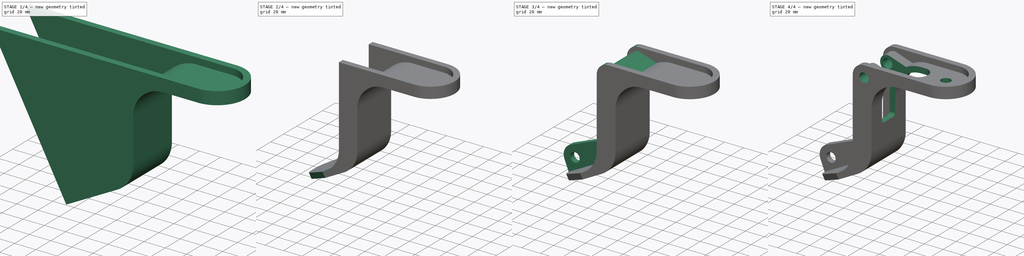
[diagram: build sequence overview — one tinted view per stage of 4, left to right]
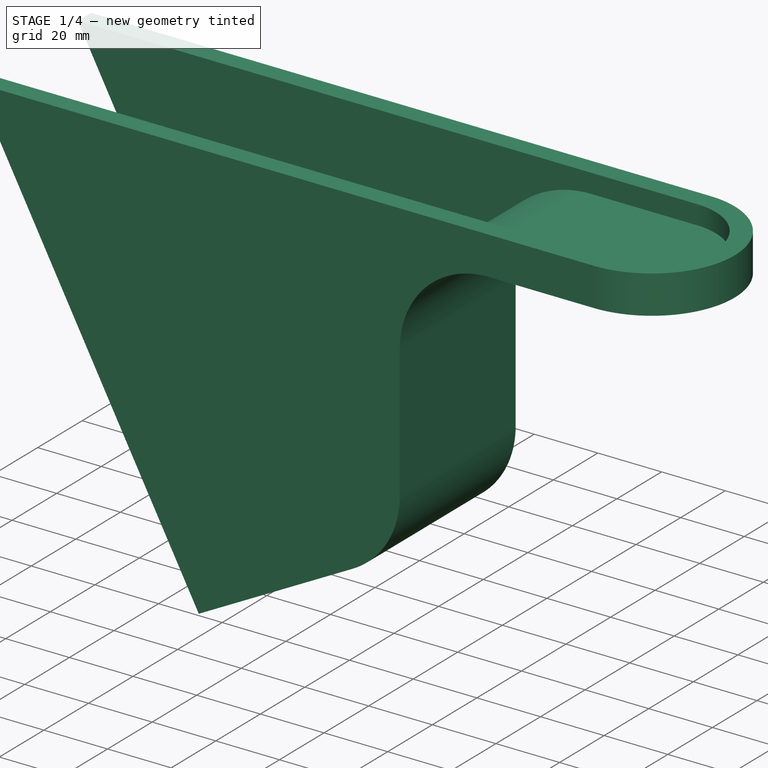
[diagram: stage 1 of 4 — iso view after this stage's code; geometry added in this stage tinted green]
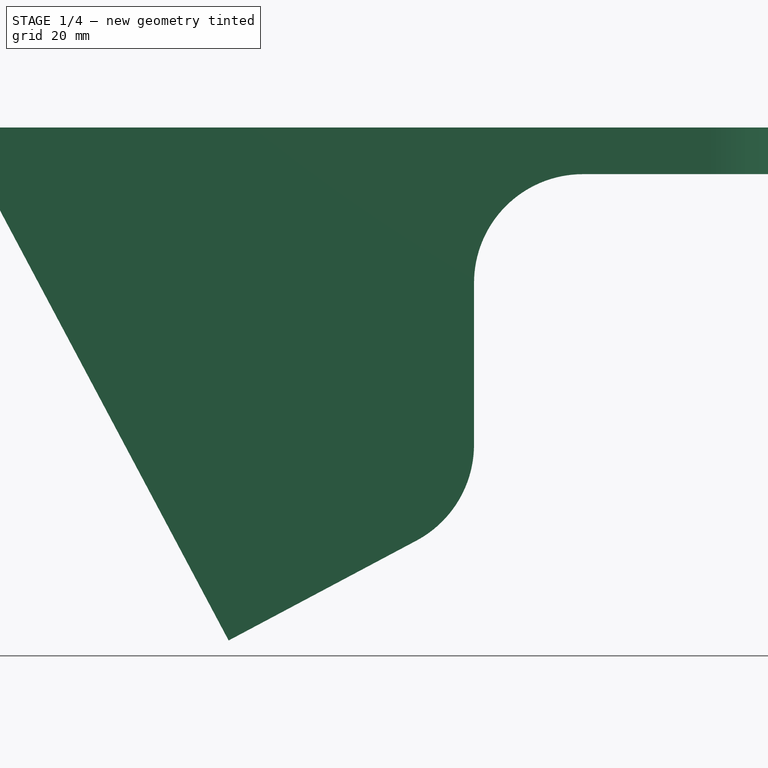
[diagram: stage 1 of 4 — front view after this stage's code; geometry added in this stage tinted green]
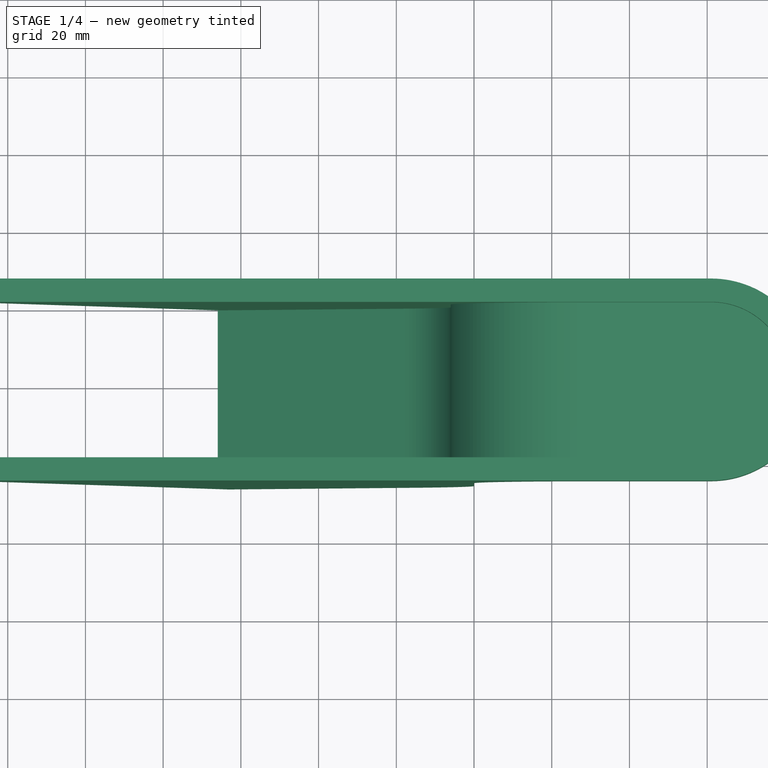
[diagram: stage 1 of 4 — top view after this stage's code; geometry added in this stage tinted green]
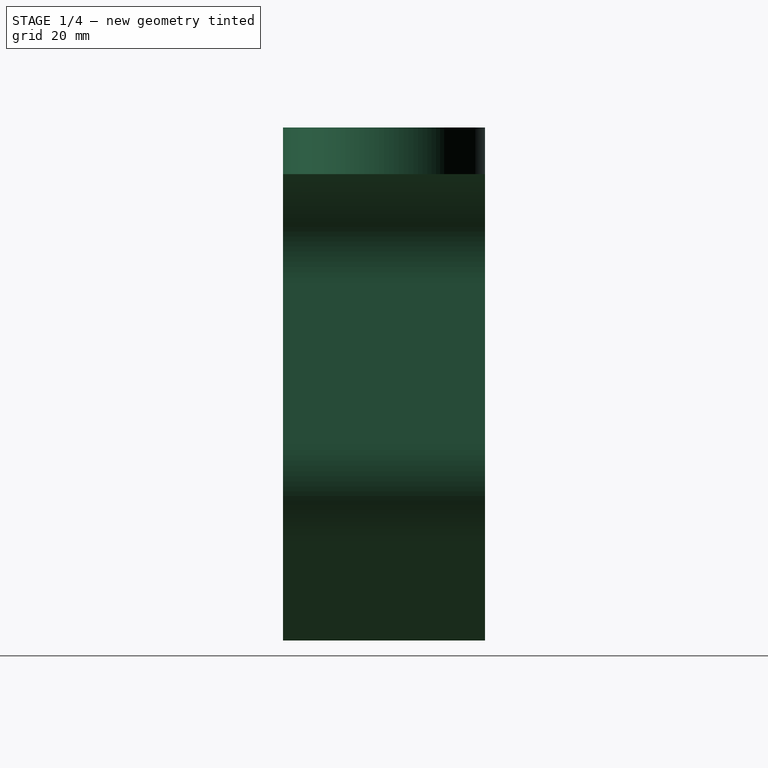
[diagram: stage 1 of 4 — right view after this stage's code; geometry added in this stage tinted green]
FCSTD DOCUMENT  (FreeCAD 0.21R33771 (Git))
Label: ex29
License: All rights reserved
LicenseURL: https://en.wikipedia.org/wiki/All_rights_reserved
objects: Sketcher::SketchObject×9, PartDesign::Pocket×6, PartDesign::Fillet×4, PartDesign::Pad×3, PartDesign::Thickness×1, PartDesign::Body×1
note: 38 computed .brp shape members not serialized (recipe doc carries the construction recipe); baked Part::Feature solids carry a one-line shape summary decoded from their .brp

FEATURE [Sketcher::SketchObject] Sketch
  FullyConstrained = true
  MapMode = 5
  Placement = pos=(0,0,0) rot=(1,0,0;1.5708rad)
  Support = -> [XZ_Plane]
  sketch-geometry (7):
    g0: LineSegment StartX=0 StartY=0 StartZ=0 EndX=87 EndY=0 EndZ=0
    g1: LineSegment StartX=87 StartY=0 StartZ=0 EndX=87 EndY=12 EndZ=0
    g2: LineSegment StartX=87 StartY=12 StartZ=0 EndX=-133.331 EndY=12 EndZ=0
    g3: LineSegment StartX=-133.331 StartY=12 StartZ=0 EndX=-63.1449 EndY=-120 EndZ=0
    g4: LineSegment StartX=-63.1449 StartY=-120 StartZ=0 EndX=0 EndY=-86.4253 EndZ=0
    g5: LineSegment StartX=0 StartY=-86.4253 StartZ=0 EndX=0 EndY=0 EndZ=0
    g6: ArcOfCircle CenterX=-61 CenterY=-98.4733 CenterZ=0 NormalX=0 NormalY=0 NormalZ=1 AngleXU=0 Radius=12 StartAngle=3.14159 EndAngle=3.63028
  constraints (21):
    c: Coincident(g-1,g0)
    c: PointOnObject(g0,g-1)
    c: Coincident(g0,g1)
    c: Vertical(g1)
    c: Coincident(g1,g2)
    c: Horizontal(g2)
    c: Coincident(g2,g3)
    c: Coincident(g3,g4)
    c: PointOnObject(g4,g-2)
    c: Coincident(g4,g5)
    c: Coincident(g5,g0)
    c: DistanceY(g1,g1) = 12
    c: Perpendicular(g4,g3)
    c: DistanceX(g0,g0) = 87
    c: DistanceY(g3,g2) = 132
    c: Angle(g5,g4) = 2.05949
    c: Distance(g6,g3) = 18
    c: Radius(g6) = 12
    c: Horizontal(g6,g6)
    c: DistanceX(g6,g1) = 160
    c: Tangent(g6,g3) = -1.5708
FEATURE [PartDesign::Pad] Pad
  Direction = (0,-1,2e-16)
  Length = 52
  Length2 = 10
  Midplane = true
  Placement = pos=(0,0,0) rot=(1,0,0;1.5708rad)
  Profile = -> Sketch
  ReferenceAxis = -> Sketch [N_Axis]
  Type = 0
FEATURE [PartDesign::Fillet] Fillet
  Base = -> Pad [Edge14,Edge1]
  BaseFeature = -> Pad
  Placement = pos=(0,0,0) rot=(1,0,0;1.5708rad)
  Radius = 28
  SupportTransform = false
  UseAllEdges = false
FEATURE [Sketcher::SketchObject] Sketch001
  ExternalGeometry = -> [Fillet]
  FullyConstrained = false
  MapMode = 5
  Placement = pos=(0,2.7e-15,12) rot=(0,0,1;3.14159rad)
  Support = -> [Fillet]
  sketch-geometry (2):
    g0: ArcOfCircle CenterX=-61 CenterY=1.51738e-11 CenterZ=0 NormalX=0 NormalY=0 NormalZ=1 AngleXU=0 Radius=26 StartAngle=1.5708 EndAngle=4.71239
    g1: ArcOfCircle CenterX=-137.492 CenterY=1.51587e-11 CenterZ=0 NormalX=0 NormalY=0 NormalZ=1 AngleXU=0 Radius=80.7901 StartAngle=0.327653 EndAngle=5.95553
  constraints (5):
    c: Tangent(g0,g-4)
    c: Coincident(g1,g0)
    c: Coincident(g1,g0)
    c: Tangent(g0,g-6) = 1.5708
    c: Tangent(g0,g-5) = -1.5708
FEATURE [PartDesign::Pocket] Pocket
  BaseFeature = -> Fillet
  Direction = (0,-2e-16,-1)
  Length = 5
  Length2 = 5
  Placement = pos=(0,0,0) rot=(1,0,0;1.5708rad)
  Profile = -> Sketch001
  ReferenceAxis = -> Sketch001 [N_Axis]
  Type = 1
FEATURE [PartDesign::Thickness] Thickness
  Base = -> Pocket [Face8,Face7]
  BaseFeature = -> Pocket
  Intersection = false
  Join = 0
  Mode = 0
  Reversed = true
  SupportTransform = false
  Value = 6
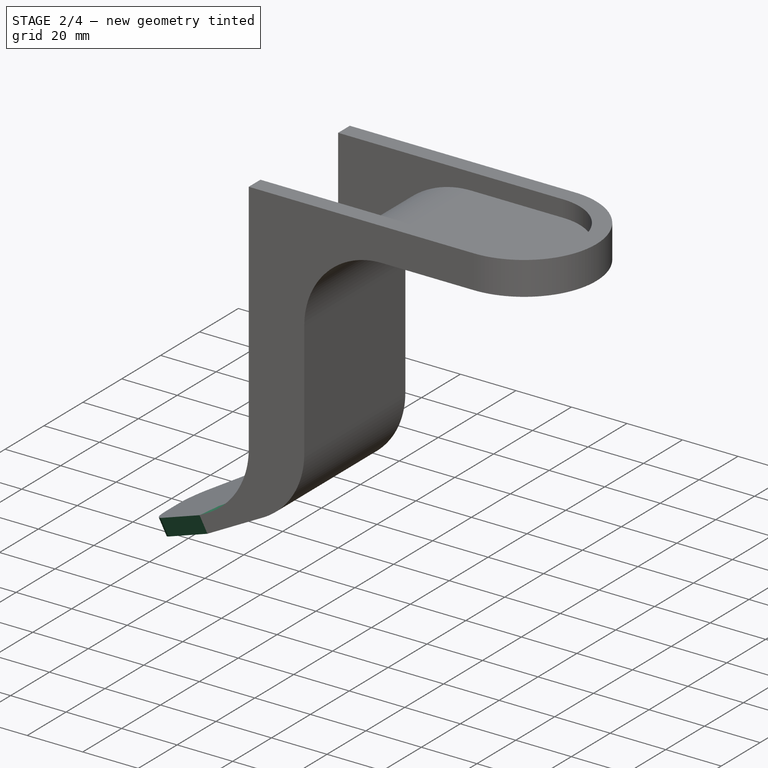
[diagram: stage 2 of 4 — iso view after this stage's code; geometry added in this stage tinted green]
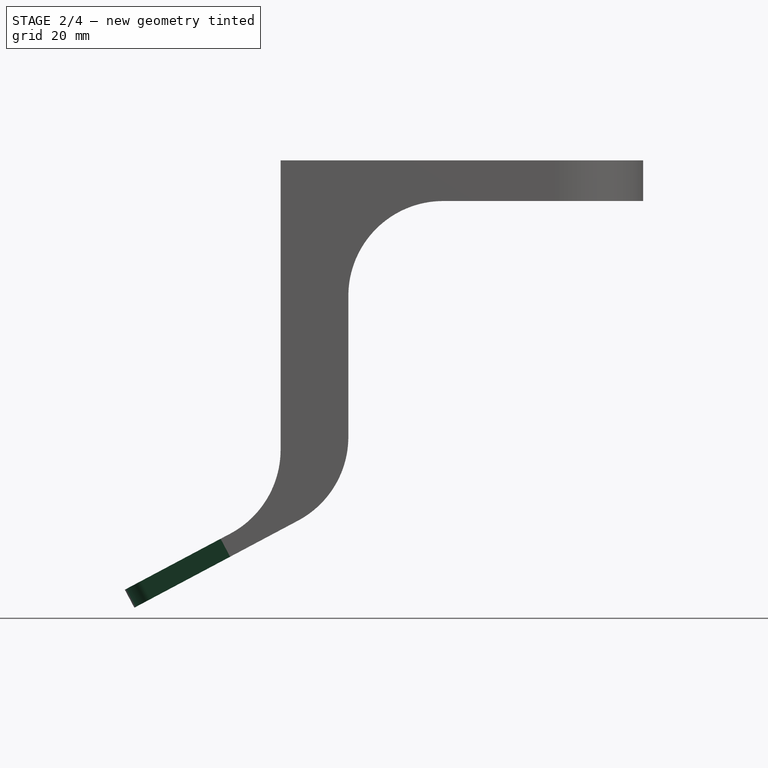
[diagram: stage 2 of 4 — front view after this stage's code; geometry added in this stage tinted green]
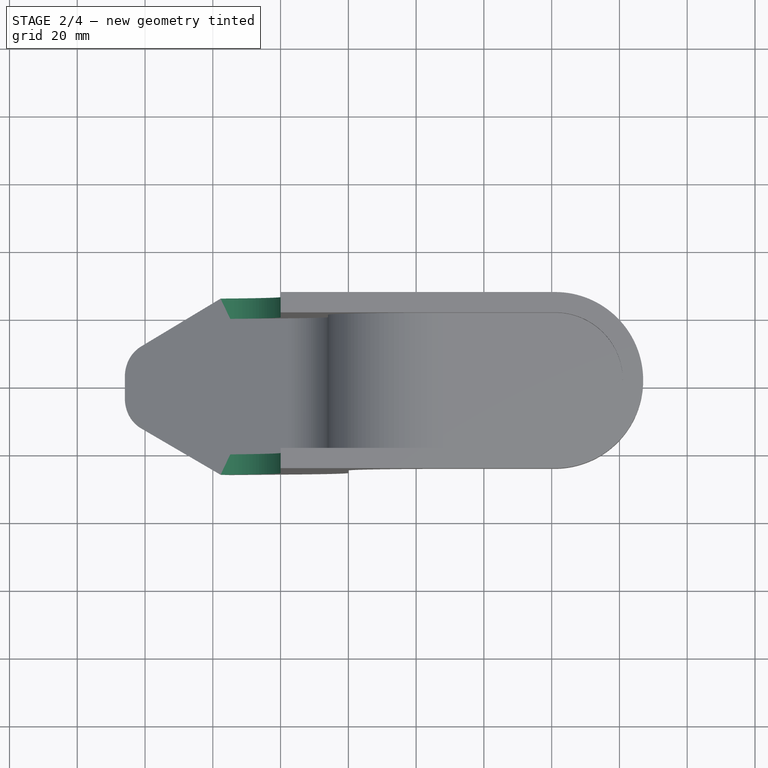
[diagram: stage 2 of 4 — top view after this stage's code; geometry added in this stage tinted green]
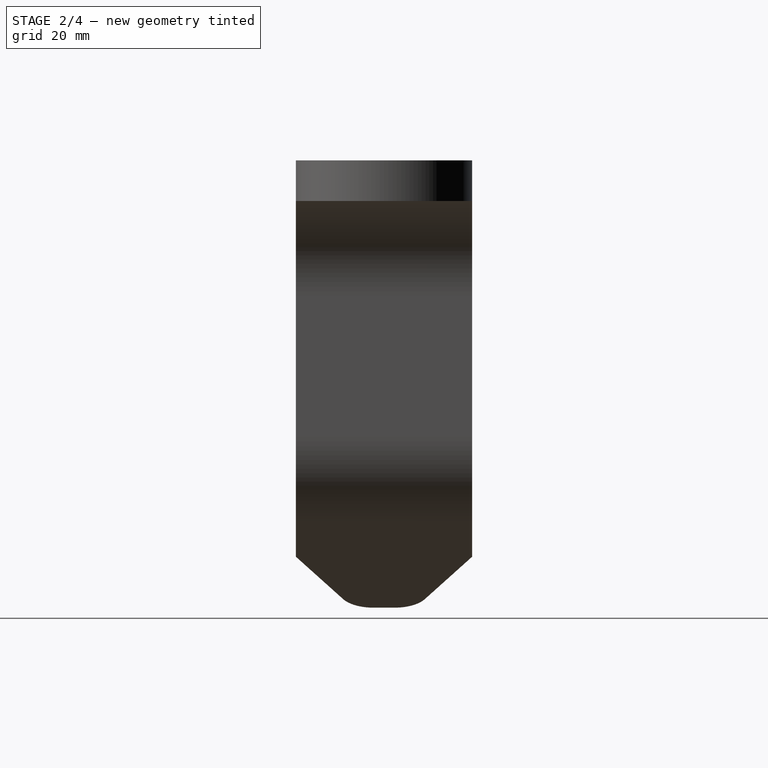
[diagram: stage 2 of 4 — right view after this stage's code; geometry added in this stage tinted green]
FEATURE [Sketcher::SketchObject] Sketch002
  ExternalGeometry = -> [Thickness]
  FullyConstrained = true
  MapMode = 5
  Placement = pos=(0,0,0) rot=(1,0,0;1.5708rad)
  Support = -> [XZ_Plane]
  sketch-geometry (4):
    g0: LineSegment StartX=-20 StartY=12 StartZ=0 EndX=-20 EndY=-73.4399 EndZ=0
    g1: LineSegment StartX=-34.8548 StartY=-98.1625 StartZ=0 EndX=-65.9617 EndY=-114.702 EndZ=0
    g2: ArcOfCircle CenterX=-48 CenterY=-73.4399 CenterZ=0 NormalX=0 NormalY=0 NormalZ=1 AngleXU=0 Radius=28 StartAngle=5.20108 EndAngle=6.28319
    g3: ArcOfCircle CenterX=-162.621 CenterY=-7.95117 CenterZ=0 NormalX=0 NormalY=0 NormalZ=1 AngleXU=0 Radius=144.01 StartAngle=0.138987 EndAngle=5.44822
  constraints (12):
    c: PointOnObject(g0,g-3)
    c: Vertical(g0)
    c: PointOnObject(g1,g-4)
    c: Perpendicular(g1,g-4)
    c: Tangent(g0,g2) = 1.5708
    c: Tangent(g1,g2) = 1.5708
    c: Radius(g2) = 28
    c: DistanceX(g0,g-1) = 20
    c: Distance(g1,g-4) = 6
    c: Coincident(g3,g1)
    c: Coincident(g3,g0)
    c: Radius(g3) = 144.01
FEATURE [PartDesign::Pocket] Pocket001
  BaseFeature = -> Thickness
  Direction = (0,1,-2e-16)
  Length = 5
  Length2 = 5
  Midplane = true
  Profile = -> Sketch002
  ReferenceAxis = -> Sketch002 [N_Axis]
  Refine = true
  Type = 1
FEATURE [Sketcher::SketchObject] Sketch003
  ExternalGeometry = -> [Pocket001]
  FullyConstrained = false
  MapMode = 5
  Placement = pos=(33.0081,-5.1e-15,-62.0791) rot=(0,-1,0;0.488692rad)
  Support = -> [Pocket001]
  sketch-geometry (4):
    g0: LineSegment StartX=-112.09 StartY=9.2433 StartZ=0 EndX=-80.0902 EndY=26 EndZ=0
    g1: LineSegment StartX=-112.09 StartY=-9.2433 StartZ=0 EndX=-80.0902 EndY=-26 EndZ=0
    g2: ArcOfCircle CenterX=-102.012 CenterY=28.9312 CenterZ=0 NormalX=0 NormalY=0 NormalZ=1 AngleXU=0 Radius=22.1173 StartAngle=6.15026 EndAngle=10.5225
    g3: ArcOfCircle CenterX=-99.9367 CenterY=-24.9673 CenterZ=0 NormalX=0 NormalY=0 NormalZ=1 AngleXU=0 Radius=19.8734 StartAngle=2.22881 EndAngle=6.2312
  constraints (10):
    c: PointOnObject(g0,g-3)
    c: PointOnObject(g0,g-4)
    c: PointOnObject(g1,g-5)
    c: Symmetric(g0,g1,g-1)
    c: DistanceX(g0,g0) = 32
    c: Vertical(g1,g0)
    c: Coincident(g2,g0)
    c: Coincident(g2,g0)
    c: Coincident(g3,g1)
    c: Coincident(g3,g1)
FEATURE [PartDesign::Pocket] Pocket002
  BaseFeature = -> Pocket001
  Direction = (0.469472,-1e-16,-0.882948)
  Length = 5
  Length2 = 5
  Profile = -> Sketch003
  ReferenceAxis = -> Sketch003 [N_Axis]
  Type = 1
FEATURE [PartDesign::Fillet] Fillet001
  Base = -> Pocket002 [Edge47,Edge55]
  BaseFeature = -> Pocket002
  Radius = 10
  SupportTransform = false
  UseAllEdges = false
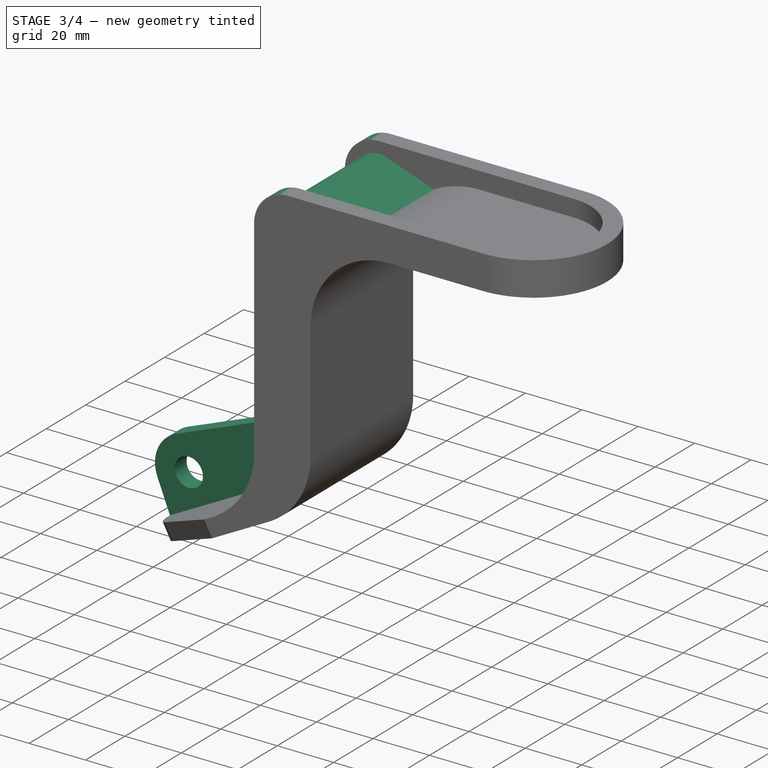
[diagram: stage 3 of 4 — iso view after this stage's code; geometry added in this stage tinted green]
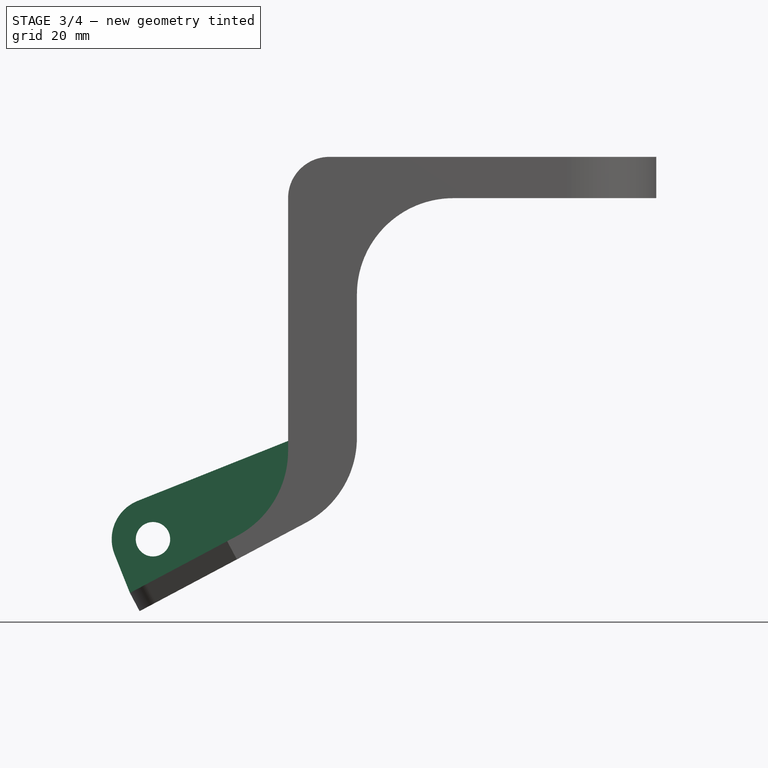
[diagram: stage 3 of 4 — front view after this stage's code; geometry added in this stage tinted green]
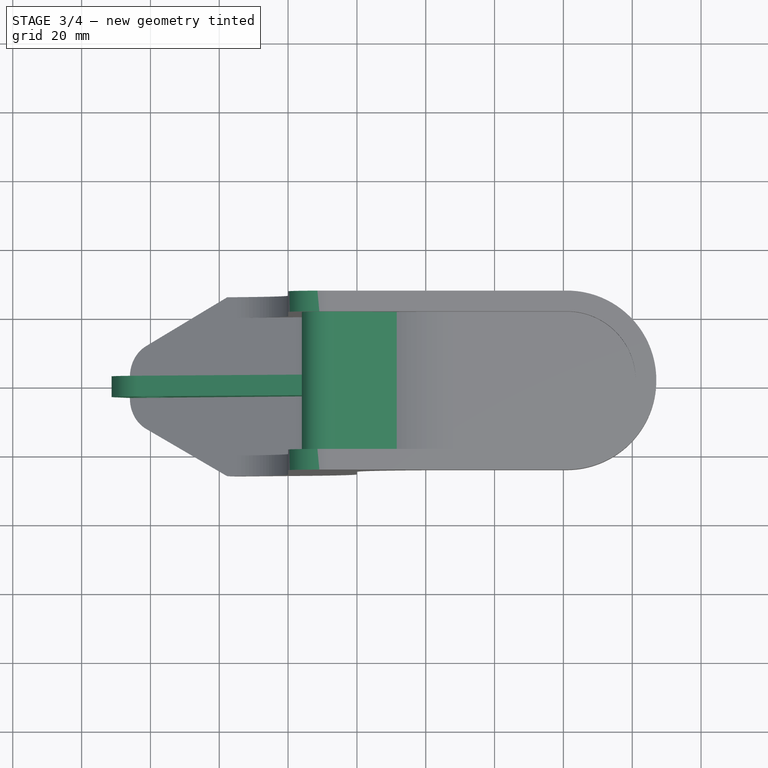
[diagram: stage 3 of 4 — top view after this stage's code; geometry added in this stage tinted green]
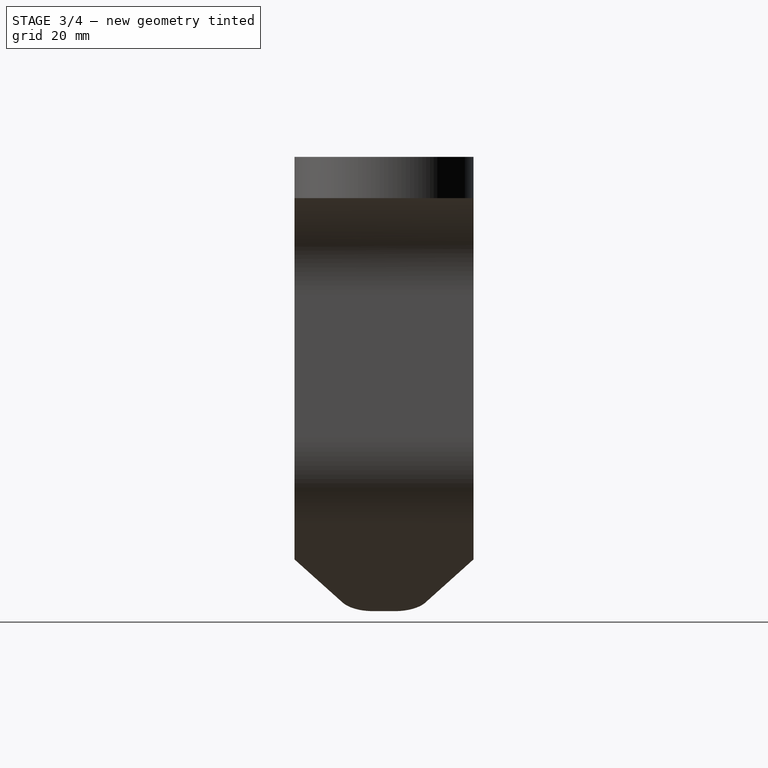
[diagram: stage 3 of 4 — right view after this stage's code; geometry added in this stage tinted green]
FEATURE [Sketcher::SketchObject] Sketch004
  ExternalGeometry = -> [Fillet001]
  FullyConstrained = true
  MapMode = 5
  Placement = pos=(0,0,0) rot=(1,0,0;1.5708rad)
  Support = -> [XZ_Plane]
  sketch-geometry (7):
    g0: LineSegment StartX=-65.9617 StartY=-114.702 StartZ=0 EndX=-70.4063 EndY=-103.556 EndZ=0
    g1: LineSegment StartX=-63.7044 StartY=-87.9646 StartZ=0 EndX=0 EndY=-62.5628 EndZ=0
    g2: ArcOfCircle CenterX=-59.2598 CenterY=-99.1112 CenterZ=0 NormalX=0 NormalY=0 NormalZ=1 AngleXU=0 Radius=12 StartAngle=1.95022 EndAngle=3.52102
    g3: LineSegment StartX=-65.9617 StartY=-114.702 StartZ=0 EndX=-14.8548 EndY=-94.3237 EndZ=0
    g4: LineSegment StartX=0 StartY=-62.5628 StartZ=0 EndX=0 EndY=-69.6012 EndZ=0
    g5: ArcOfCircle CenterX=-28 CenterY=-69.6012 CenterZ=0 NormalX=0 NormalY=0 NormalZ=1 AngleXU=0 Radius=28 StartAngle=5.20108 EndAngle=6.28319
    g6: Circle CenterX=-59.2598 CenterY=-99.1112 CenterZ=0 NormalX=0 NormalY=0 NormalZ=1 AngleXU=0 Radius=5
  constraints (17):
    c: Coincident(g0,g-6)
    c: PointOnObject(g1,g-5)
    c: Coincident(g3,g0)
    c: Coincident(g3,g-3)
    c: Tangent(g2,g1) = 1.5708
    c: Tangent(g0,g2) = 1.5708
    c: Perpendicular(g0,g3)
    c: Radius(g2) = 12
    c: Distance(g0) = 12
    c: Parallel(g1,g3)
    c: Coincident(g4,g1)
    c: Coincident(g4,g-5)
    c: Coincident(g5,g4)
    c: Coincident(g5,g3)
    c: Tangent(g5,g-3)
    c: Coincident(g6,g2)
    c: Radius(g6) = 5
FEATURE [PartDesign::Pad] Pad001
  BaseFeature = -> Fillet001
  Direction = (0,-1,2e-16)
  Length = 6
  Length2 = 10
  Midplane = true
  Profile = -> Sketch004
  ReferenceAxis = -> Sketch004 [N_Axis]
  Type = 0
FEATURE [PartDesign::Fillet] Fillet002
  Base = -> Pad001 [Edge76,Edge74]
  BaseFeature = -> Pad001
  Radius = 12
  SupportTransform = false
  UseAllEdges = false
FEATURE [Sketcher::SketchObject] Sketch005
  ExternalGeometry = -> [Fillet002]
  FullyConstrained = true
  MapMode = 5
  Placement = pos=(0,-26,5.8e-15) rot=(1,0,0;1.5708rad)
  Support = -> [Fillet002]
  sketch-geometry (5):
    g0: ArcOfCircle CenterX=-8 CenterY=6.7e-15 CenterZ=0 NormalX=0 NormalY=0 NormalZ=1 AngleXU=0 Radius=8 StartAngle=1.24137 EndAngle=3.71973
    g1: LineSegment StartX=-5.41197 StartY=7.56982 StartZ=0 EndX=14.8147 EndY=0.654556 EndZ=0
    g2: LineSegment StartX=-14.6998 StartY=-4.37175 StartZ=0 EndX=-3.01843 EndY=-22.2739 EndZ=0
    g3: LineSegment StartX=14.8147 StartY=0.654556 StartZ=0 EndX=-3.01843 EndY=-22.2739 EndZ=0
    g4: LineSegment StartX=-8 StartY=6.7e-15 StartZ=0 EndX=5.89815 EndY=-10.8096 EndZ=0
  constraints (13):
    c: Coincident(g0,g-3)
    c: Coincident(g3,g1)
    c: Coincident(g3,g2)
    c: Coincident(g4,g0)
    c: Perpendicular(g3,g4)
    c: Angle(g2,g1) = 0.663225
    c: Equal(g1,g2)
    c: Radius(g0) = 8
    c: Tangent(g0,g1) = 1.5708
    c: Tangent(g0,g2) = -1.5708
    c: Tangent(g3,g-4)
    c: PointOnObject(g4,g3)
    c: PointOnObject(g4,g-4)
FEATURE [PartDesign::Pad] Pad002
  BaseFeature = -> Fillet002
  Direction = (0,-1,2e-16)
  Length = 20
  Length2 = 10
  Profile = -> Sketch005
  ReferenceAxis = -> Sketch005 [N_Axis]
  Refine = true
  Reversed = true
  Type = 3
  UpToFace = -> Fillet002 [Face12]
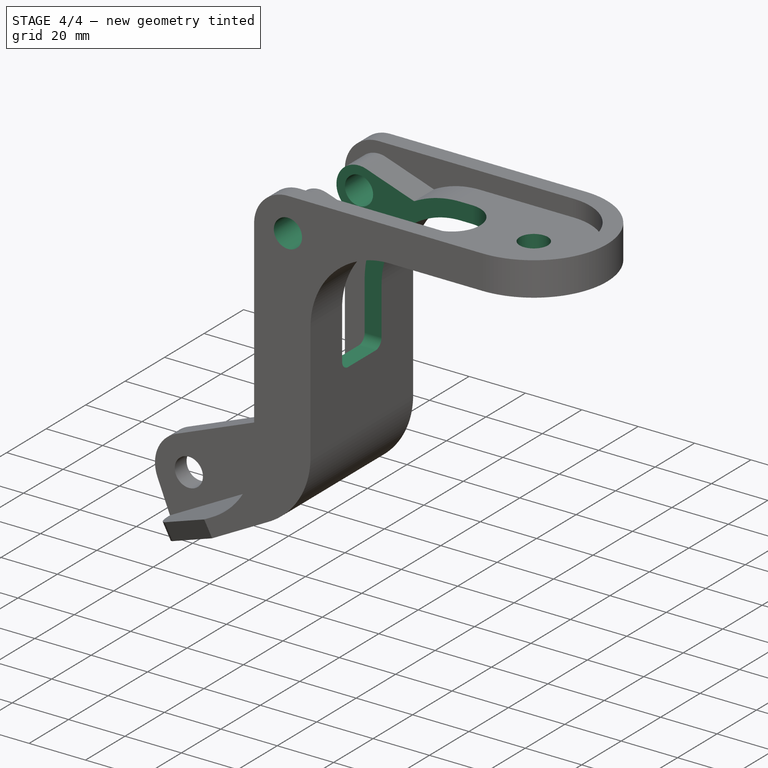
[diagram: stage 4 of 4 — iso view after this stage's code; geometry added in this stage tinted green]
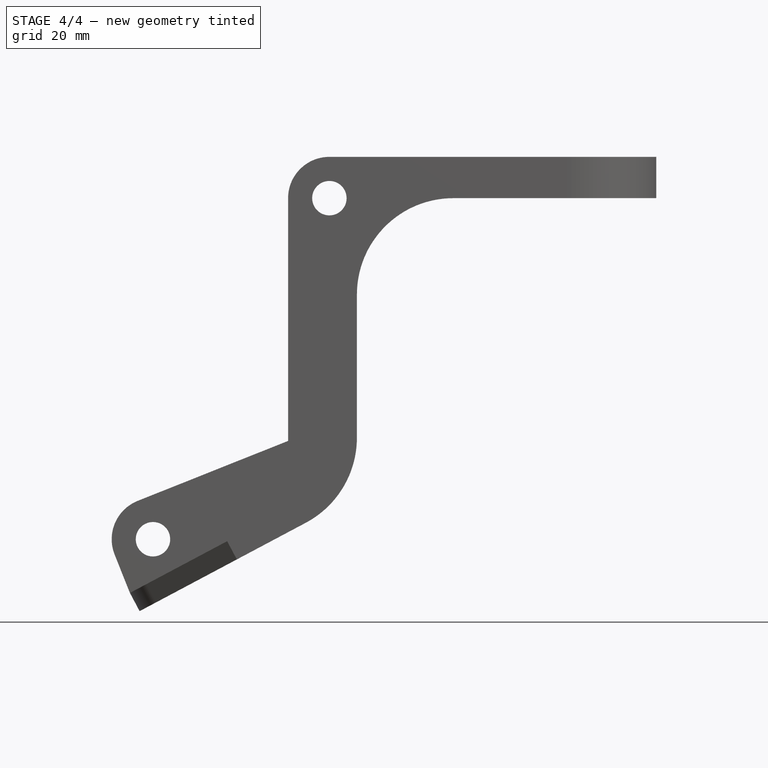
[diagram: stage 4 of 4 — front view after this stage's code; geometry added in this stage tinted green]
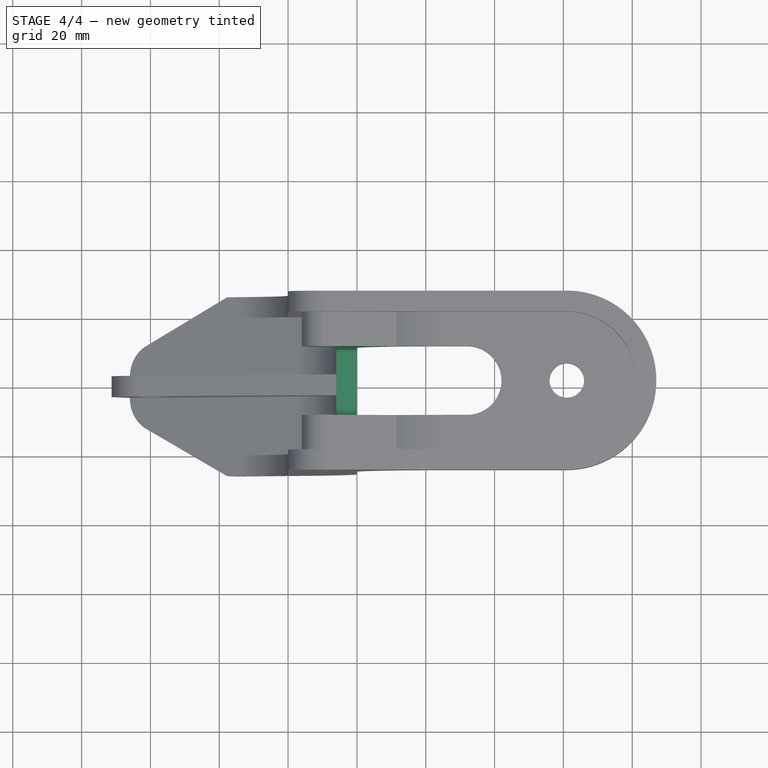
[diagram: stage 4 of 4 — top view after this stage's code; geometry added in this stage tinted green]
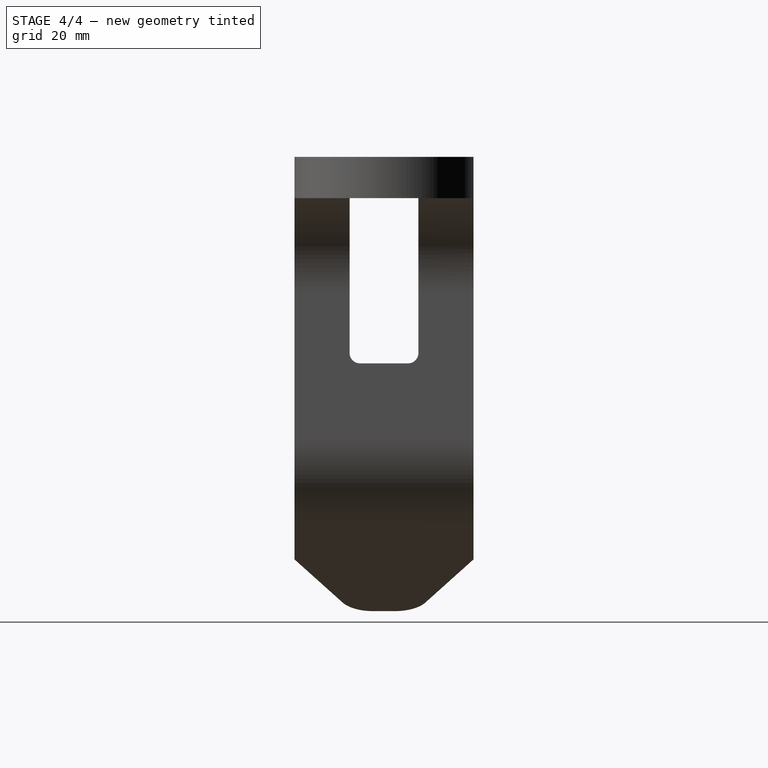
[diagram: stage 4 of 4 — right view after this stage's code; geometry added in this stage tinted green]
FEATURE [Sketcher::SketchObject] Sketch006
  ExternalGeometry = -> [Pad002]
  FullyConstrained = true
  MapMode = 5
  Placement = pos=(0,-26,5.8e-15) rot=(1,0,0;1.5708rad)
  Support = -> [Pad002]
  sketch-geometry (1):
    g0: Circle CenterX=-8 CenterY=0 CenterZ=0 NormalX=0 NormalY=0 NormalZ=1 AngleXU=0 Radius=5
  constraints (2):
    c: Coincident(g0,g-3)
    c: Radius(g0) = 5
FEATURE [PartDesign::Pocket] Pocket003
  BaseFeature = -> Pad002
  Direction = (0,1,-2e-16)
  Length = 5
  Length2 = 5
  Profile = -> Sketch006
  ReferenceAxis = -> Sketch006 [N_Axis]
  Type = 1
FEATURE [Sketcher::SketchObject] Sketch007
  ExternalGeometry = -> [Pocket003]
  FullyConstrained = false
  MapMode = 5
  Placement = pos=(0,2.7e-15,12) rot=(0,0,1;0rad)
  Support = -> [Pocket003]
  sketch-geometry (5):
    g0: ArcOfCircle CenterX=32 CenterY=0 CenterZ=0 NormalX=0 NormalY=0 NormalZ=1 AngleXU=0 Radius=10 StartAngle=4.71239 EndAngle=7.85398
    g1: ArcOfCircle CenterX=-27.2486 CenterY=0 CenterZ=0 NormalX=0 NormalY=0 NormalZ=1 AngleXU=0 Radius=10 StartAngle=1.5708 EndAngle=4.71239
    g2: LineSegment StartX=32 StartY=10 StartZ=0 EndX=-27.2486 EndY=10 EndZ=0
    g3: LineSegment StartX=-27.2486 StartY=-10 StartZ=0 EndX=32 EndY=-10 EndZ=0
    g4: GeomPoint X=42 Y=0 Z=0
  constraints (11):
    c: Tangent(g0,g2) = -1.5708
    c: Tangent(g2,g1) = -1.5708
    c: Tangent(g1,g3) = -1.5708
    c: Tangent(g3,g0) = -1.5708
    c: Equal(g0,g1)
    c: PointOnObject(g0,g-1)
    c: PointOnObject(g1,g-1)
    c: DistanceY(g0,g0) = 20
    c: PointOnObject(g4,g0)
    c: PointOnObject(g4,g-1)
    c: DistanceX(g4,g-3) = 45
FEATURE [PartDesign::Pocket] Pocket004
  BaseFeature = -> Pocket003
  Direction = (0,-2e-16,-1)
  Length = 60
  Length2 = 5
  Profile = -> Sketch007
  ReferenceAxis = -> Sketch007 [N_Axis]
  Type = 0
FEATURE [PartDesign::Fillet] Fillet003
  Base = -> Pocket004 [Edge101,Edge94]
  BaseFeature = -> Pocket004
  Radius = 3
  SupportTransform = false
  UseAllEdges = false
FEATURE [Sketcher::SketchObject] Sketch008
  ExternalGeometry = -> [Fillet003]
  FullyConstrained = true
  MapMode = 5
  Placement = pos=(0,1.3e-15,6) rot=(0,0,1;0rad)
  Support = -> [Fillet003]
  sketch-geometry (1):
    g0: Circle CenterX=61 CenterY=0 CenterZ=0 NormalX=0 NormalY=0 NormalZ=1 AngleXU=0 Radius=5
  constraints (2):
    c: Coincident(g0,g-3)
    c: Radius(g0) = 5
FEATURE [PartDesign::Pocket] Pocket005
  BaseFeature = -> Fillet003
  Direction = (0,-2e-16,-1)
  Length = 9
  Length2 = 5
  Profile = -> Sketch008
  ReferenceAxis = -> Sketch008 [N_Axis]
  Type = 0
FEATURE [PartDesign::Body] Body
  Group = -> [Sketch,Pad,Fillet,Sketch001,Pocket,Thickness,Sketch002,Pocket001,Sketch003,Pocket002,Fillet001,Sketch004,Pad001,Fillet002,Sketch005,Pad002,Sketch006,Pocket003,Sketch007,Pocket004,Fillet003,Sketch008,Pocket005]
  Origin = -> Origin
  Tip = -> Pocket005
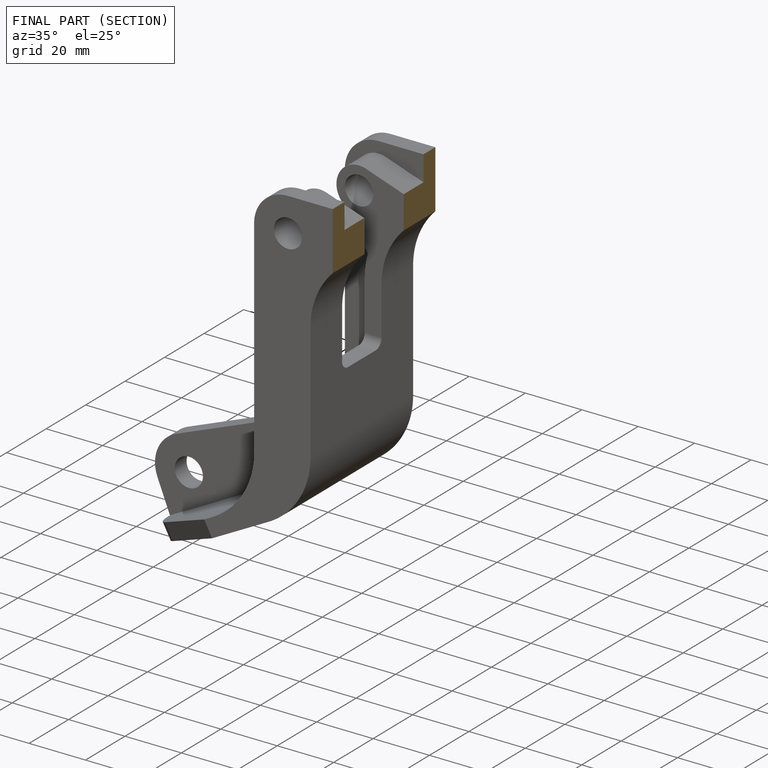
[diagram: finished part — half-section view (interior)]
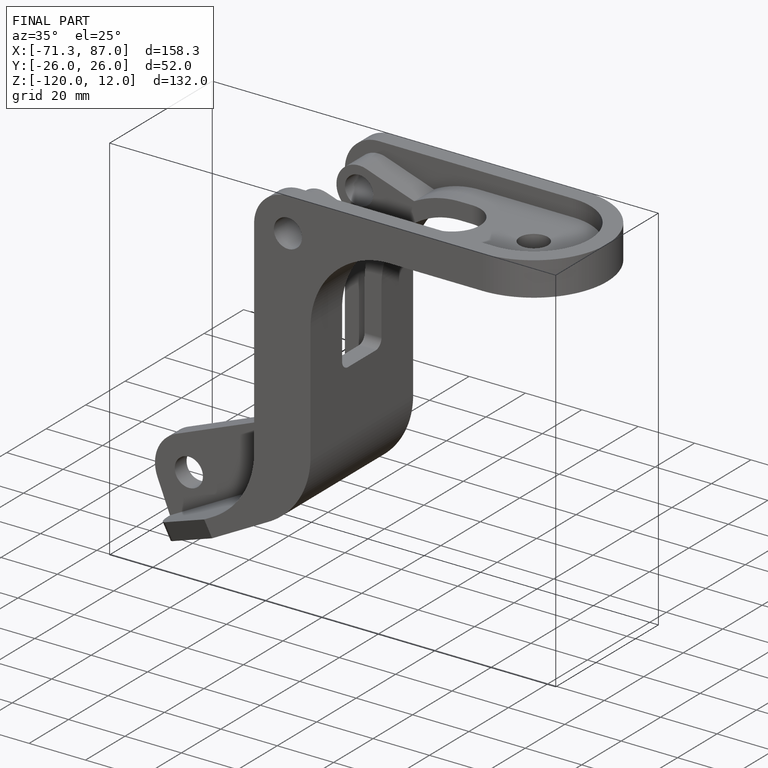
[diagram: finished part — iso view with bounding-box wireframe]
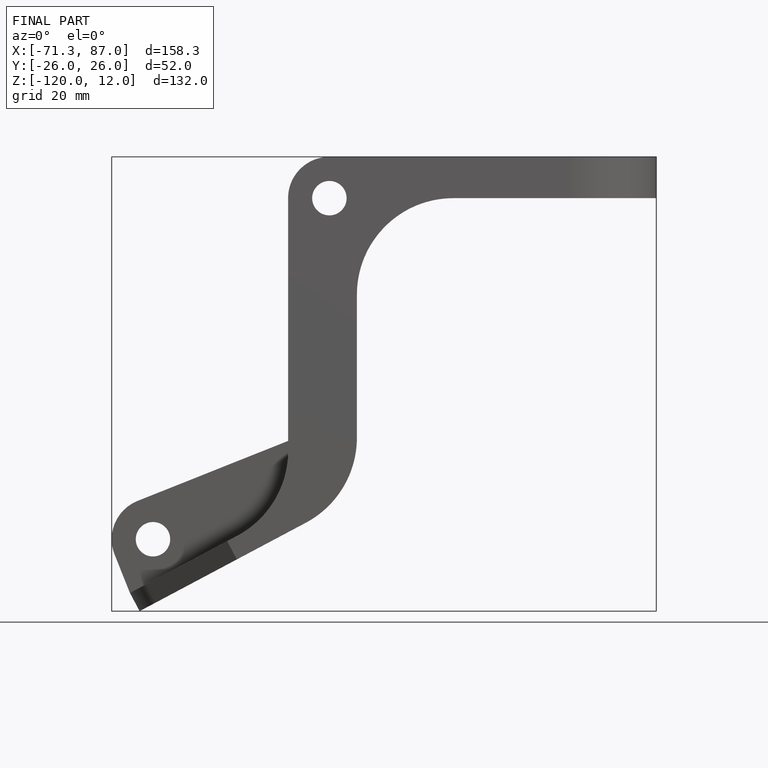
[diagram: finished part — front view with bounding-box wireframe]
